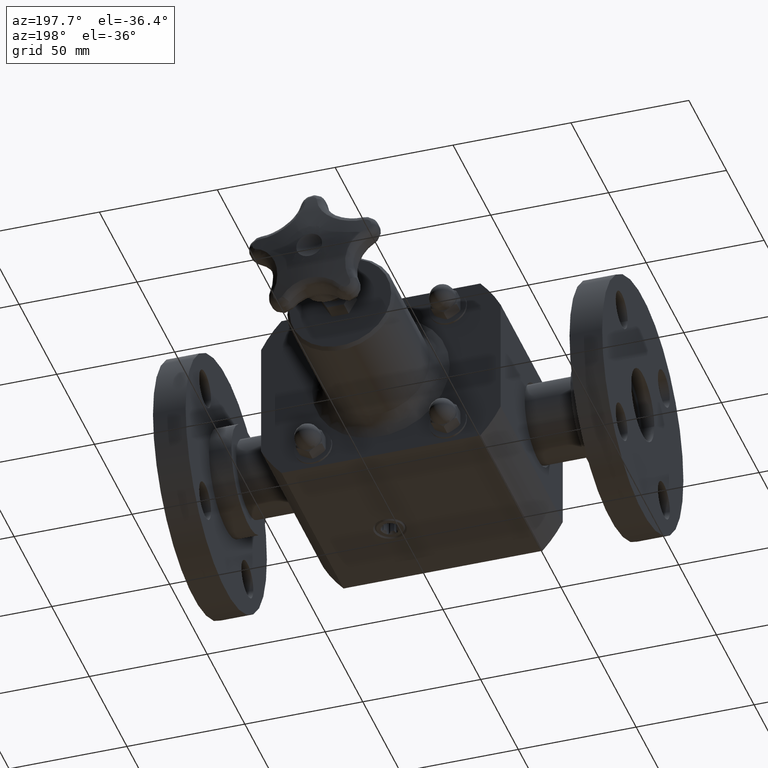
[diagram: clean part render]
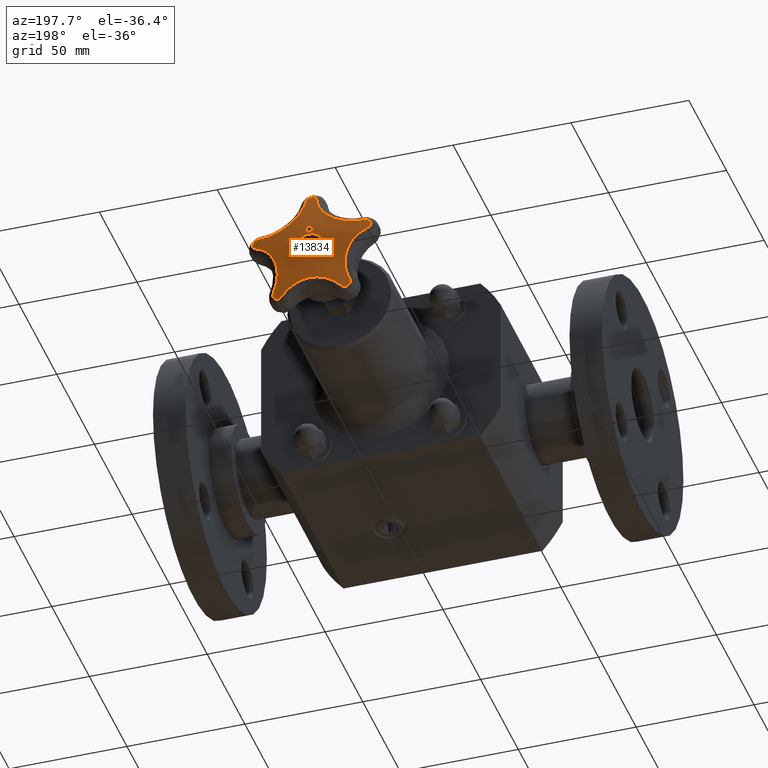
[diagram: same view with one face highlighted and labeled with its STEP entity id]
A machine part, auxiliary view. The second image highlights one B-rep face of the part: STEP entity #13834.
In plain terms, the highlighted spherical surface has radius 101.6 mm.
Its self-contained STEP definition (entity closure, byte-faithful):
#10645=CARTESIAN_POINT('',(0.085862900185211,6.992578033837449,-0.334336098257462));
#10646=VERTEX_POINT('',#10645);
#10653=CARTESIAN_POINT('',(0.080862571524474,6.990070388788940,-0.364135061299996));
#10654=VERTEX_POINT('',#10653);
#10655=CARTESIAN_POINT('',(0.138077283113868,3.007499999999999,-0.023169658459773));
#10656=DIRECTION('',(0.986211736099962,-3.532625E-034,-0.165488403154721));
#10657=DIRECTION('',(0.165488403154721,2.105233E-033,0.986211736099962));
#10658=AXIS2_PLACEMENT_3D('',#10655,#10656,#10657);
#10659=CIRCLE('',#10658,3.997548977913186);
#10660=EDGE_CURVE('',#10654,#10646,#10659,.T.);
#10678=CARTESIAN_POINT('',(0.066931145986276,6.990560100352849,-0.361597094393902));
#10679=VERTEX_POINT('',#10678);
#10680=CARTESIAN_POINT('',(-0.061608234058828,3.007499999999999,-0.338180345563003));
#10681=DIRECTION('',(-0.179225881333302,0.0,-0.983807950496590));
#10682=DIRECTION('',(0.0,-1.0,0.0));
#10683=AXIS2_PLACEMENT_3D('',#10680,#10681,#10682);
#10684=CIRCLE('',#10683,3.985202438944732);
#10685=EDGE_CURVE('',#10679,#10654,#10684,.T.);
#10703=CARTESIAN_POINT('',(0.086359266902231,6.999345606544357,-0.240230577846813));
#10704=VERTEX_POINT('',#10703);
#10705=CARTESIAN_POINT('',(0.121696449326066,3.007499999999999,-0.019480935927100));
#10706=DIRECTION('',(-0.987428598717144,3.374175E-034,0.158065690254078));
#10707=DIRECTION('',(-0.158065690254078,-2.107831E-033,-0.987428598717144));
#10708=AXIS2_PLACEMENT_3D('',#10705,#10706,#10707);
#10709=CIRCLE('',#10708,3.998100857576862);
#10710=EDGE_CURVE('',#10704,#10679,#10709,.T.);
#10728=CARTESIAN_POINT('',(0.178491128782160,6.990560100243761,-0.321516958794137));
#10729=VERTEX_POINT('',#10728);
#10730=CARTESIAN_POINT('',(-0.081379549747351,3.007499999999999,-0.092237461550079));
#10731=DIRECTION('',(0.661592173204071,0.0,0.749863851879202));
#10732=DIRECTION('',(0.0,1.0,0.0));
#10733=AXIS2_PLACEMENT_3D('',#10730,#10731,#10732);
#10734=CIRCLE('',#10733,3.998108255108873);
#10735=EDGE_CURVE('',#10729,#10704,#10734,.T.);
#10771=CARTESIAN_POINT('',(0.169360113250168,6.990070388702392,-0.332340564889026));
#10772=VERTEX_POINT('',#10771);
#10773=CARTESIAN_POINT('',(0.262739148876333,3.007499999999999,-0.221652121134103));
#10774=DIRECTION('',(0.764340282334966,0.0,-0.644813099122609));
#10775=DIRECTION('',(0.0,-1.0,0.0));
#10776=AXIS2_PLACEMENT_3D('',#10773,#10774,#10775);
#10777=CIRCLE('',#10776,3.985202438627741);
#10778=EDGE_CURVE('',#10772,#10729,#10777,.T.);
#10796=CARTESIAN_POINT('',(0.146539084429404,6.992578033778148,-0.312536976105990));
#10797=VERTEX_POINT('',#10796);
#10798=CARTESIAN_POINT('',(-0.091762441742962,3.007499999999999,-0.105744133077216));
#10799=DIRECTION('',(-0.655409775395539,0.0,-0.755273477831686));
#10800=DIRECTION('',(0.0,-1.0,0.0));
#10801=AXIS2_PLACEMENT_3D('',#10798,#10799,#10800);
#10802=CIRCLE('',#10801,3.997548978137118);
#10803=EDGE_CURVE('',#10797,#10772,#10802,.T.);
#10821=CARTESIAN_POINT('',(0.116200988857743,3.007499999999999,-0.323436538421051));
#10822=DIRECTION('',(0.338111065893150,0.0,-0.941106214579735));
#10823=DIRECTION('',(0.0,-1.0,0.0));
#10824=AXIS2_PLACEMENT_3D('',#10821,#10822,#10823);
#10825=CIRCLE('',#10824,3.985208418113498);
#10826=EDGE_CURVE('',#10646,#10797,#10825,.T.);
#10856=CARTESIAN_POINT('',(0.037834369669133,6.998204436490725,0.269901206082853));
#10857=VERTEX_POINT('',#10856);
#10864=CARTESIAN_POINT('',(-0.000813251585510,6.999463335806677,0.253432563411026));
#10865=VERTEX_POINT('',#10864);
#10866=CARTESIAN_POINT('',(-0.000813251585510,6.999463335806677,0.253432563411026));
#10867=CARTESIAN_POINT('',(0.004822604549694,6.999463267161416,0.253451729844247));
#10868=CARTESIAN_POINT('',(0.010434056143418,6.999408968571549,0.254137147028971));
#10869=CARTESIAN_POINT('',(0.019829419967589,6.999191776701513,0.256945437338925));
#10870=CARTESIAN_POINT('',(0.023603879105451,6.999063271092422,0.258616838560289));
#10871=CARTESIAN_POINT('',(0.031162797321007,6.998707503911847,0.263275608997046));
#10872=CARTESIAN_POINT('',(0.034718544485056,6.998475224151669,0.266334166676061));
#10873=CARTESIAN_POINT('',(0.037834369669133,6.998204436490725,0.269901206082853));
#10874=B_SPLINE_CURVE_WITH_KNOTS('',3,(#10866,#10867,#10868,#10869,#10870,#10871,#10872,#10873),.UNSPECIFIED.,.F.,.U.,(4,2,2,4),(0.0,0.042945472093289,0.074729953679080,0.111130521126663),.UNSPECIFIED.);
#10875=EDGE_CURVE('',#10865,#10857,#10874,.T.);
#10908=CARTESIAN_POINT('',(0.051972176469609,6.994648590963243,0.316140801626154));
#10909=VERTEX_POINT('',#10908);
#10916=CARTESIAN_POINT('',(0.037834369669133,6.998204436490725,0.269901206082853));
#10917=CARTESIAN_POINT('',(0.041442739555291,6.997886429832898,0.274097371770597));
#10918=CARTESIAN_POINT('',(0.044216393332118,6.997526143654532,0.278867364485766));
#10919=CARTESIAN_POINT('',(0.051175872144373,6.996247534047897,0.295695352673443));
#10920=CARTESIAN_POINT('',(0.052000310715353,6.995304176149833,0.307867975918427));
#10921=CARTESIAN_POINT('',(0.051972176469609,6.994648590963243,0.316140801626154));
#10922=B_SPLINE_CURVE_WITH_KNOTS('',3,(#10916,#10917,#10918,#10919,#10920,#10921),.UNSPECIFIED.,.F.,.U.,(4,2,4),(0.0,0.042240697270331,0.139117363804144),.UNSPECIFIED.);
#10923=EDGE_CURVE('',#10857,#10909,#10922,.T.);
#10949=CARTESIAN_POINT('',(0.037422621985948,6.990875481075144,0.362380082417699));
#10950=VERTEX_POINT('',#10949);
#10957=CARTESIAN_POINT('',(0.051972176469609,6.994648590963243,0.316140801626154));
#10958=CARTESIAN_POINT('',(0.051955724861658,6.994265235014526,0.320978368143261));
#10959=CARTESIAN_POINT('',(0.051649887753166,6.993873160763517,0.325860197870604));
#10960=CARTESIAN_POINT('',(0.050134657362984,6.993046460787355,0.336059631335726));
#10961=CARTESIAN_POINT('',(0.048942330808374,6.992679768741239,0.340537076610657));
#10962=CARTESIAN_POINT('',(0.045132529339032,6.991814489793273,0.351068251626344));
#10963=CARTESIAN_POINT('',(0.041865078415885,6.991314249290123,0.357098260899483));
#10964=CARTESIAN_POINT('',(0.037422621985948,6.990875481075144,0.362380082417699));
#10965=B_SPLINE_CURVE_WITH_KNOTS('',3,(#10957,#10958,#10959,#10960,#10961,#10962,#10963,#10964),.UNSPECIFIED.,.F.,.U.,(4,2,2,4),(0.0,0.036978033263811,0.078812994269673,0.145814753845857),.UNSPECIFIED.);
#10966=EDGE_CURVE('',#10909,#10950,#10965,.T.);
#10994=CARTESIAN_POINT('',(-0.001238542349022,6.989552846207734,0.378488567887762));
#10995=VERTEX_POINT('',#10994);
#11002=CARTESIAN_POINT('',(0.037422621985948,6.990875481075143,0.362380082417699));
#11003=CARTESIAN_POINT('',(0.034954443929450,6.990644692501274,0.365171856276013));
#11004=CARTESIAN_POINT('',(0.032197988751061,6.990440415363388,0.367645041378231));
#11005=CARTESIAN_POINT('',(0.025433171661516,6.990054380883788,0.372335971569167));
#11006=CARTESIAN_POINT('',(0.021382576080450,6.989892027163672,0.374321631798851));
#11007=CARTESIAN_POINT('',(0.014161922593872,6.989697132621297,0.376716303028090));
#11008=CARTESIAN_POINT('',(0.011126297743766,6.989640822220747,0.377412789087582));
#11009=CARTESIAN_POINT('',(0.004967186895550,6.989568654773591,0.378304358121797));
#11010=CARTESIAN_POINT('',(0.001864839243269,6.989552808314178,0.378499121875412));
#11011=CARTESIAN_POINT('',(-0.001238542349022,6.989552846207735,0.378488567887762));
#11012=B_SPLINE_CURVE_WITH_KNOTS('',3,(#11002,#11003,#11004,#11005,#11006,#11007,#11008,#11009,#11010,#11011),.UNSPECIFIED.,.F.,.U.,(4,2,2,2,4),(0.0,0.028449418287417,0.062797366334246,0.086669104210055,0.110412733579470),.UNSPECIFIED.);
#11013=EDGE_CURVE('',#10950,#10995,#11012,.T.);
#11199=CARTESIAN_POINT('',(-0.039886494311879,6.990875481072099,0.362117169387378));
#11200=VERTEX_POINT('',#11199);
#11207=CARTESIAN_POINT('',(-0.001238542349022,6.989552846207735,0.378488567887762));
#11208=CARTESIAN_POINT('',(-0.006745334190294,6.989552913447912,0.378469840376704));
#11209=CARTESIAN_POINT('',(-0.012222719771290,6.989603190919957,0.377803010782853));
#11210=CARTESIAN_POINT('',(-0.022169110236763,6.989836259202795,0.374873454632416));
#11211=CARTESIAN_POINT('',(-0.025880772573738,6.989983982792515,0.373045650941543));
#11212=CARTESIAN_POINT('',(-0.032976239086434,6.990326456239560,0.368822005397033));
#11213=CARTESIAN_POINT('',(-0.036677483482774,6.990576120274293,0.365763676003978));
#11214=CARTESIAN_POINT('',(-0.039886494311879,6.990875481072099,0.362117169387378));
#11215=B_SPLINE_CURVE_WITH_KNOTS('',3,(#11207,#11208,#11209,#11210,#11211,#11212,#11213,#11214),.UNSPECIFIED.,.F.,.U.,(4,2,2,4),(0.0,0.041961996486355,0.079020325656231,0.132098515306939),.UNSPECIFIED.);
#11216=EDGE_CURVE('',#10995,#11200,#11215,.T.);
#11242=CARTESIAN_POINT('',(-0.054121214575584,6.994648590959068,0.315779998964419));
#11243=VERTEX_POINT('',#11242);
#11250=CARTESIAN_POINT('',(-0.039886494311879,6.990875481072099,0.362117169387379));
#11251=CARTESIAN_POINT('',(-0.043384531614640,6.991215540252459,0.357991135129826));
#11252=CARTESIAN_POINT('',(-0.046110522559887,6.991601304155911,0.353327026506887));
#11253=CARTESIAN_POINT('',(-0.049655140330849,6.992287322165349,0.344989572698873));
#11254=CARTESIAN_POINT('',(-0.051408401706368,6.992680648419752,0.340203251638015));
#11255=CARTESIAN_POINT('',(-0.053714336300564,6.993694761028934,0.327721858865083));
#11256=CARTESIAN_POINT('',(-0.054141415064117,6.994177878462815,0.321719917253611));
#11257=CARTESIAN_POINT('',(-0.054121214575584,6.994648590959069,0.315779998964419));
#11258=B_SPLINE_CURVE_WITH_KNOTS('',3,(#11250,#11251,#11252,#11253,#11254,#11255,#11256,#11257),.UNSPECIFIED.,.F.,.U.,(4,2,2,4),(0.0,0.041300163745689,0.069239721804254,0.093823977580811),.UNSPECIFIED.);
#11259=EDGE_CURVE('',#11200,#11243,#11258,.T.);
#11285=CARTESIAN_POINT('',(-0.039571990800137,6.998205379604828,0.269637962344318));
#11286=VERTEX_POINT('',#11285);
#11293=CARTESIAN_POINT('',(-0.054121214575584,6.994648590959069,0.315779998964419));
#11294=CARTESIAN_POINT('',(-0.054104973183962,6.995027048439477,0.311004246190809));
#11295=CARTESIAN_POINT('',(-0.053791585087129,6.995402200783875,0.306211457940532));
#11296=CARTESIAN_POINT('',(-0.052375519715094,6.996143410979318,0.296655576028873));
#11297=CARTESIAN_POINT('',(-0.051258684496628,6.996507467278865,0.291916990166383));
#11298=CARTESIAN_POINT('',(-0.047377403862622,6.997352193214817,0.280860112488070));
#11299=CARTESIAN_POINT('',(-0.044132654634130,6.997811607413357,0.274796561836272));
#11300=CARTESIAN_POINT('',(-0.039571990800137,6.998205379604828,0.269637962344318));
#11301=B_SPLINE_CURVE_WITH_KNOTS('',3,(#11293,#11294,#11295,#11296,#11297,#11298,#11299,#11300),.UNSPECIFIED.,.F.,.U.,(4,2,2,4),(0.0,0.036505533163791,0.073822024429602,0.126837533468264),.UNSPECIFIED.);
#11302=EDGE_CURVE('',#11243,#11286,#11301,.T.);
#11329=CARTESIAN_POINT('',(-0.039571990800137,6.998205379604828,0.269637962344318));
#11330=CARTESIAN_POINT('',(-0.036994618978134,6.998426649193219,0.266741374653485));
#11331=CARTESIAN_POINT('',(-0.034125944551199,6.998624226597590,0.264155087526020));
#11332=CARTESIAN_POINT('',(-0.028127958870894,6.998941902899273,0.260022999604724));
#11333=CARTESIAN_POINT('',(-0.024119800176987,6.999119835051819,0.257727462092390));
#11334=CARTESIAN_POINT('',(-0.015614631027444,6.999330482346444,0.255058899401250));
#11335=CARTESIAN_POINT('',(-0.012615830697533,6.999382732516449,0.254406267976288));
#11336=CARTESIAN_POINT('',(-0.006666959610788,6.999448427235686,0.253597873925737));
#11337=CARTESIAN_POINT('',(-0.003741704705223,6.999463371475511,0.253422604320576));
#11338=CARTESIAN_POINT('',(-0.000813251586145,6.999463335806677,0.253432563411023));
#11339=B_SPLINE_CURVE_WITH_KNOTS('',3,(#11329,#11330,#11331,#11332,#11333,#11334,#11335,#11336,#11337,#11338),.UNSPECIFIED.,.F.,.U.,(4,2,2,2,4),(0.0,0.029592715149351,0.055552496815722,0.069221283901438,0.082236559754027),.UNSPECIFIED.);
#11340=EDGE_CURVE('',#11286,#10865,#11339,.T.);
#11614=CARTESIAN_POINT('',(-0.247118300170064,6.994930202010447,-0.198325313099391));
#11615=VERTEX_POINT('',#11614);
#11622=CARTESIAN_POINT('',(-0.207827658530652,6.995059962457521,-0.237008882018031));
#11623=VERTEX_POINT('',#11622);
#11624=CARTESIAN_POINT('',(-0.220785948703934,3.007499999999999,-0.224250808083116));
#11625=DIRECTION('',(0.701580297701931,0.0,0.712590405405847));
#11626=DIRECTION('',(0.0,1.0,0.0));
#11627=AXIS2_PLACEMENT_3D('',#11624,#11625,#11626);
#11628=CIRCLE('',#11627,3.987601426914302);
#11629=EDGE_CURVE('',#11623,#11615,#11628,.T.);
#11647=CARTESIAN_POINT('',(-0.176580613442933,6.998324840990898,-0.205271467783727));
#11648=VERTEX_POINT('',#11647);
#11649=CARTESIAN_POINT('',(0.012958290173282,3.007499999999999,-0.012758073934915));
#11650=DIRECTION('',(-0.712590405405847,0.0,0.701580297701931));
#11651=DIRECTION('',(0.0,1.0,0.0));
#11652=AXIS2_PLACEMENT_3D('',#11649,#11650,#11651);
#11653=CIRCLE('',#11652,3.999958664069575);
#11654=EDGE_CURVE('',#11648,#11623,#11653,.T.);
#11672=CARTESIAN_POINT('',(-0.218712377317293,6.998156275729467,-0.163790674304833));
#11673=VERTEX_POINT('',#11672);
#11674=CARTESIAN_POINT('',(-0.189538903616215,3.007499999999999,-0.192513393848811));
#11675=DIRECTION('',(-0.701580297701931,0.0,-0.712590405405848));
#11676=DIRECTION('',(0.0,-1.0,0.0));
#11677=AXIS2_PLACEMENT_3D('',#11674,#11675,#11676);
#11678=CIRCLE('',#11677,3.990866271526118);
#11679=EDGE_CURVE('',#11673,#11648,#11678,.T.);
#11697=CARTESIAN_POINT('',(-0.208751528883217,6.999092069880928,-0.153673507321845));
#11698=VERTEX_POINT('',#11697);
#11699=CARTESIAN_POINT('',(-0.029173473701078,3.007499999999999,0.028722719543979));
#11700=DIRECTION('',(-0.712590405405848,0.0,0.701580297701931));
#11701=DIRECTION('',(0.0,1.0,0.0));
#11702=AXIS2_PLACEMENT_3D('',#11699,#11700,#11701);
#11703=CIRCLE('',#11702,3.999790483739644);
#11704=EDGE_CURVE('',#11698,#11673,#11703,.T.);
#11722=CARTESIAN_POINT('',(-0.155255276069062,6.999156082813489,-0.206343199041756));
#11723=VERTEX_POINT('',#11722);
#11724=CARTESIAN_POINT('',(-0.179578055182138,3.007499999999999,-0.182396226865823));
#11725=DIRECTION('',(0.701580297701931,0.0,0.712590405405847));
#11726=DIRECTION('',(0.0,1.0,0.0));
#11727=AXIS2_PLACEMENT_3D('',#11724,#11725,#11726);
#11728=CIRCLE('',#11727,3.991802016448476);
#11729=EDGE_CURVE('',#11723,#11698,#11728,.T.);
#11747=CARTESIAN_POINT('',(-0.239444912833790,6.989646073155507,-0.291854048747284));
#11748=VERTEX_POINT('',#11747);
#11749=CARTESIAN_POINT('',(0.024322779113077,3.007499999999999,-0.023946972175932));
#11750=DIRECTION('',(0.712590405405848,0.0,-0.701580297701931));
#11751=DIRECTION('',(0.0,-1.0,0.0));
#11752=AXIS2_PLACEMENT_3D('',#11749,#11750,#11751);
#11753=CIRCLE('',#11752,3.999854365466301);
#11754=EDGE_CURVE('',#11748,#11723,#11753,.T.);
#11772=CARTESIAN_POINT('',(-0.292941165647945,6.989581907347238,-0.239184357027372));
#11773=VERTEX_POINT('',#11772);
#11774=CARTESIAN_POINT('',(-0.263767691946867,3.007499999999999,-0.267907076571351));
#11775=DIRECTION('',(-0.701580297701931,0.0,-0.712590405405847));
#11776=DIRECTION('',(0.0,-1.0,0.0));
#11777=AXIS2_PLACEMENT_3D('',#11774,#11775,#11776);
#11778=CIRCLE('',#11777,3.982292355290859);
#11779=EDGE_CURVE('',#11773,#11748,#11778,.T.);
#11797=CARTESIAN_POINT('',(-0.282980317213869,6.990896837187414,-0.229067190044385));
#11798=VERTEX_POINT('',#11797);
#11799=CARTESIAN_POINT('',(-0.029173473701078,3.007499999999999,0.028722719543979));
#11800=DIRECTION('',(-0.712590405405848,0.0,0.701580297701931));
#11801=DIRECTION('',(0.0,1.0,0.0));
#11802=AXIS2_PLACEMENT_3D('',#11799,#11800,#11801);
#11803=CIRCLE('',#11802,3.999790483739644);
#11804=EDGE_CURVE('',#11798,#11773,#11803,.T.);
#11822=CARTESIAN_POINT('',(-0.240848553339509,6.991065709633236,-0.270547983523278));
#11823=VERTEX_POINT('',#11822);
#11824=CARTESIAN_POINT('',(-0.253806843512790,3.007499999999999,-0.257789909588363));
#11825=DIRECTION('',(0.701580297701931,0.0,0.712590405405847));
#11826=DIRECTION('',(0.0,1.0,0.0));
#11827=AXIS2_PLACEMENT_3D('',#11824,#11825,#11826);
#11828=CIRCLE('',#11827,3.983607215665281);
#11829=EDGE_CURVE('',#11823,#11798,#11828,.T.);
#11847=CARTESIAN_POINT('',(-0.217788506964729,6.993914037971873,-0.247126049001019));
#11848=VERTEX_POINT('',#11847);
#11849=CARTESIAN_POINT('',(0.012958290173282,3.007499999999999,-0.012758073934914));
#11850=DIRECTION('',(-0.712590405405848,0.0,0.701580297701930));
#11851=DIRECTION('',(0.0,1.0,0.0));
#11852=AXIS2_PLACEMENT_3D('',#11849,#11850,#11851);
#11853=CIRCLE('',#11852,3.999958664069575);
#11854=EDGE_CURVE('',#11848,#11823,#11853,.T.);
#11872=CARTESIAN_POINT('',(-0.257079148604141,6.993784240222976,-0.208442480082379));
#11873=VERTEX_POINT('',#11872);
#11874=CARTESIAN_POINT('',(-0.230746797138010,3.007499999999999,-0.234367975066104));
#11875=DIRECTION('',(-0.701580297701931,0.0,-0.712590405405848));
#11876=DIRECTION('',(0.0,-1.0,0.0));
#11877=AXIS2_PLACEMENT_3D('',#11874,#11875,#11876);
#11878=CIRCLE('',#11877,3.986455514347798);
#11879=EDGE_CURVE('',#11873,#11848,#11878,.T.);
#11897=CARTESIAN_POINT('',(-0.026332351466130,3.007499999999999,0.025925494983725));
#11898=DIRECTION('',(-0.712590405405848,0.0,0.701580297701931));
#11899=DIRECTION('',(0.0,1.0,0.0));
#11900=AXIS2_PLACEMENT_3D('',#11897,#11898,#11899);
#11901=CIRCLE('',#11900,3.999829305854953);
#11902=EDGE_CURVE('',#11615,#11873,#11901,.T.);
#11924=CARTESIAN_POINT('',(0.104679989358765,6.989501420719622,0.364289425065761));
#11925=VERTEX_POINT('',#11924);
#11932=CARTESIAN_POINT('',(0.193260657033255,6.989499064924951,0.326088585172621));
#11933=VERTEX_POINT('',#11932);
#11934=CARTESIAN_POINT('',(0.148881029224559,3.007499999999999,0.345227513574776));
#11935=DIRECTION('',(0.395999965100261,0.0,0.918250525532435));
#11936=DIRECTION('',(0.0,1.0,0.0));
#11937=AXIS2_PLACEMENT_3D('',#11934,#11935,#11936);
#11938=CIRCLE('',#11937,3.982292355290859);
#11939=EDGE_CURVE('',#11933,#11925,#11938,.T.);
#11964=CARTESIAN_POINT('',(0.099057688326105,6.990816377129185,0.351252350992701));
#11965=VERTEX_POINT('',#11964);
#11972=CARTESIAN_POINT('',(-0.044201039865794,3.007499999999999,0.019061911490986));
#11973=DIRECTION('',(-0.918250525532435,8.453278E-034,0.395999965100260));
#11974=DIRECTION('',(-0.395999965100260,-1.960158E-033,-0.918250525532435));
#11975=AXIS2_PLACEMENT_3D('',#11972,#11973,#11974);
#11976=CIRCLE('',#11975,3.999710353463748);
#11977=EDGE_CURVE('',#11925,#11965,#11976,.T.);
#11997=CARTESIAN_POINT('',(0.136025829875741,6.991099428197434,0.335309661763105));
#11998=VERTEX_POINT('',#11997);
#12005=CARTESIAN_POINT('',(0.143258728191900,3.007499999999999,0.332190439501716));
#12006=DIRECTION('',(-0.395999965100261,0.0,-0.918250525532434));
#12007=DIRECTION('',(0.0,-1.0,0.0));
#12008=AXIS2_PLACEMENT_3D('',#12005,#12006,#12007);
#12009=CIRCLE('',#12008,3.983607215665281);
#12010=EDGE_CURVE('',#11965,#11998,#12009,.T.);
#12030=CARTESIAN_POINT('',(0.094128134509071,6.999294244967611,0.238156671410437));
#12031=VERTEX_POINT('',#12030);
#12038=CARTESIAN_POINT('',(-0.007232898316158,3.007499999999999,0.003119222261389));
#12039=DIRECTION('',(-0.918250525532435,8.453278E-034,0.395999965100261));
#12040=DIRECTION('',(-0.395999965100261,-1.960158E-033,-0.918250525532435));
#12041=AXIS2_PLACEMENT_3D('',#12038,#12039,#12040);
#12042=CIRCLE('',#12041,3.999992244446786);
#12043=EDGE_CURVE('',#11998,#12031,#12042,.T.);
#12063=CARTESIAN_POINT('',(0.108772519084290,6.999293856457105,0.231841209976491));
#12064=VERTEX_POINT('',#12063);
#12071=CARTESIAN_POINT('',(0.101361032825230,3.007499999999999,0.235037449149049));
#12072=DIRECTION('',(-0.395999965100260,0.0,-0.918250525532435));
#12073=DIRECTION('',(0.0,-1.0,0.0));
#12074=AXIS2_PLACEMENT_3D('',#12071,#12072,#12073);
#12075=CIRCLE('',#12074,3.991802016448476);
#12076=EDGE_CURVE('',#12031,#12064,#12075,.T.);
#12096=CARTESIAN_POINT('',(0.150670214450959,6.991099038887708,0.328994200329158));
#12097=VERTEX_POINT('',#12096);
#12104=CARTESIAN_POINT('',(0.007411486259060,3.007499999999999,-0.003196239172557));
#12105=DIRECTION('',(0.918250525532434,-8.453278E-034,-0.395999965100261));
#12106=DIRECTION('',(0.395999965100261,1.960158E-033,0.918250525532434));
#12107=AXIS2_PLACEMENT_3D('',#12104,#12105,#12106);
#12108=CIRCLE('',#12107,3.999991856732535);
#12109=EDGE_CURVE('',#12064,#12097,#12108,.T.);
#12129=CARTESIAN_POINT('',(0.187638356000596,6.990814022112200,0.313051511099561));
#12130=VERTEX_POINT('',#12129);
#12137=CARTESIAN_POINT('',(0.143258728191900,3.007499999999999,0.332190439501716));
#12138=DIRECTION('',(-0.395999965100261,0.0,-0.918250525532435));
#12139=DIRECTION('',(0.0,-1.0,0.0));
#12140=AXIS2_PLACEMENT_3D('',#12137,#12138,#12139);
#12141=CIRCLE('',#12140,3.983607215665281);
#12142=EDGE_CURVE('',#12097,#12130,#12141,.T.);
#12161=CARTESIAN_POINT('',(0.044379627808697,3.007499999999999,-0.019138928402154));
#12162=DIRECTION('',(0.918250525532435,-8.453278E-034,-0.395999965100259));
#12163=DIRECTION('',(0.395999965100259,1.960158E-033,0.918250525532435));
#12164=AXIS2_PLACEMENT_3D('',#12161,#12162,#12163);
#12165=CIRCLE('',#12164,3.999708008099489);
#12166=EDGE_CURVE('',#12130,#11933,#12165,.T.);
#12265=CARTESIAN_POINT('',(-0.132776476717595,6.999152316888535,-0.221545002897484));
#12266=VERTEX_POINT('',#12265);
#12273=CARTESIAN_POINT('',(-0.141106922486269,6.991658741024817,-0.326447488490869));
#12274=VERTEX_POINT('',#12273);
#12275=CARTESIAN_POINT('',(-0.114461481346885,3.007499999999999,0.009089538322841));
#12276=DIRECTION('',(0.996861755361221,-1.689847E-034,-0.079162116559279));
#12277=DIRECTION('',(0.079162116559279,2.127967E-033,0.996861755361221));
#12278=AXIS2_PLACEMENT_3D('',#12275,#12276,#12277);
#12279=CIRCLE('',#12278,3.998351654067081);
#12280=EDGE_CURVE('',#12274,#12266,#12279,.T.);
#12298=CARTESIAN_POINT('',(-0.071391562909479,6.999171847508762,-0.247909472492113));
#12299=VERTEX_POINT('',#12298);
#12300=CARTESIAN_POINT('',(0.083150511259561,3.007499999999999,-0.073809704991097));
#12301=DIRECTION('',(-0.747864056465855,0.0,0.663851905959784));
#12302=DIRECTION('',(0.0,1.0,0.0));
#12303=AXIS2_PLACEMENT_3D('',#12300,#12301,#12302);
#12304=CIRCLE('',#12303,3.998454466406539);
#12305=EDGE_CURVE('',#12299,#12274,#12304,.T.);
#12323=CARTESIAN_POINT('',(-0.055754940032593,6.998998131883168,-0.254625312636306));
#12324=VERTEX_POINT('',#12323);
#12325=CARTESIAN_POINT('',(-0.101011795140333,3.007499999999999,-0.235187752062932));
#12326=DIRECTION('',(0.394635554071923,0.0,0.918837732933485));
#12327=DIRECTION('',(0.0,1.0,0.0));
#12328=AXIS2_PLACEMENT_3D('',#12325,#12326,#12327);
#12329=CIRCLE('',#12328,3.991802016448476);
#12330=EDGE_CURVE('',#12324,#12299,#12329,.T.);
#12348=CARTESIAN_POINT('',(-0.140907158403199,6.989784076964297,-0.348652696916783));
#12349=VERTEX_POINT('',#12348);
#12350=CARTESIAN_POINT('',(0.096057099062330,3.007499999999999,-0.086990350077203));
#12351=DIRECTION('',(0.741222642945153,0.0,-0.671259259590065));
#12352=DIRECTION('',(0.0,-1.0,0.0));
#12353=AXIS2_PLACEMENT_3D('',#12350,#12351,#12352);
#12354=CIRCLE('',#12353,3.997900162924680);
#12355=EDGE_CURVE('',#12349,#12324,#12354,.T.);
#12373=CARTESIAN_POINT('',(-0.156722485541535,6.989781975401068,-0.341860104313799));
#12374=VERTEX_POINT('',#12373);
#12375=CARTESIAN_POINT('',(-0.148368062214239,3.007499999999999,-0.345448281377657));
#12376=DIRECTION('',(-0.394635554071924,0.0,-0.918837732933484));
#12377=DIRECTION('',(0.0,-1.0,0.0));
#12378=AXIS2_PLACEMENT_3D('',#12375,#12376,#12377);
#12379=CIRCLE('',#12378,3.982292355290859);
#12380=EDGE_CURVE('',#12374,#12349,#12379,.T.);
#12398=CARTESIAN_POINT('',(-0.147698282548680,6.998978628851238,-0.215136172588454));
#12399=VERTEX_POINT('',#12398);
#12400=CARTESIAN_POINT('',(-0.131710197155649,3.007499999999999,0.009379282501569));
#12401=DIRECTION('',(-0.997474063033574,1.516288E-034,0.071031637847470));
#12402=DIRECTION('',(-0.071031637847470,-2.129274E-033,-0.997474063033574));
#12403=AXIS2_PLACEMENT_3D('',#12400,#12401,#12402);
#12404=CIRCLE('',#12403,3.997819962557716);
#12405=EDGE_CURVE('',#12399,#12374,#12404,.T.);
#12423=CARTESIAN_POINT('',(-0.101011795140333,3.007499999999999,-0.235187752062933));
#12424=DIRECTION('',(0.394635554071923,0.0,0.918837732933485));
#12425=DIRECTION('',(0.0,1.0,0.0));
#12426=AXIS2_PLACEMENT_3D('',#12423,#12424,#12425);
#12427=CIRCLE('',#12426,3.991802016448476);
#12428=EDGE_CURVE('',#12266,#12399,#12427,.T.);
#12450=CARTESIAN_POINT('',(-0.069865805707576,6.999162659387477,0.248491414025747));
#12451=VERTEX_POINT('',#12450);
#12458=CARTESIAN_POINT('',(-0.084532147717997,6.999264063873194,0.242227113207306));
#12459=VERTEX_POINT('',#12458);
#12460=CARTESIAN_POINT('',(-0.100539922146019,3.007499999999999,0.235389858602194));
#12461=DIRECTION('',(0.392792028171763,0.0,-0.919627328108899));
#12462=DIRECTION('',(0.0,-1.0,0.0));
#12463=AXIS2_PLACEMENT_3D('',#12460,#12461,#12462);
#12464=CIRCLE('',#12463,3.991802016448476);
#12465=EDGE_CURVE('',#12459,#12451,#12464,.T.);
#12490=CARTESIAN_POINT('',(-0.117000849670728,6.989652665435393,0.358846694762693));
#12491=VERTEX_POINT('',#12490);
#12498=CARTESIAN_POINT('',(0.030674116438442,3.007499999999999,0.013101555423553));
#12499=DIRECTION('',(0.919627328108900,8.384799E-034,0.392792028171762));
#12500=DIRECTION('',(-0.392792028171762,1.963097E-033,0.919627328108900));
#12501=AXIS2_PLACEMENT_3D('',#12498,#12499,#12500);
#12502=CIRCLE('',#12501,3.999860928560668);
#12503=EDGE_CURVE('',#12451,#12491,#12502,.T.);
#12523=CARTESIAN_POINT('',(-0.144723813227011,6.989791062296546,0.347005638337590));
#12524=VERTEX_POINT('',#12523);
#12531=CARTESIAN_POINT('',(-0.147674966109170,3.007499999999999,0.345745139339140));
#12532=DIRECTION('',(-0.392792028171761,0.0,0.919627328108900));
#12533=DIRECTION('',(0.0,1.0,0.0));
#12534=AXIS2_PLACEMENT_3D('',#12531,#12532,#12533);
#12535=CIRCLE('',#12534,3.982292355290859);
#12536=EDGE_CURVE('',#12491,#12524,#12535,.T.);
#12562=CARTESIAN_POINT('',(-0.170668187046193,6.990392332671243,0.327781995050035));
#12563=VERTEX_POINT('',#12562);
#12570=CARTESIAN_POINT('',(-0.144723813227011,6.989791062296545,0.347005638337590));
#12571=CARTESIAN_POINT('',(-0.150088261328737,6.989795762969324,0.344714370575645));
#12572=CARTESIAN_POINT('',(-0.155816045050091,6.989823287565297,0.341843284165149));
#12573=CARTESIAN_POINT('',(-0.163386369744121,6.989985173854674,0.336346581494137));
#12574=CARTESIAN_POINT('',(-0.167427829443181,6.990105667536206,0.332952450875757));
#12575=CARTESIAN_POINT('',(-0.170668187046193,6.990392332671243,0.327781995050035));
#12576=B_SPLINE_CURVE_WITH_KNOTS('',3,(#12570,#12571,#12572,#12573,#12574,#12575),.UNSPECIFIED.,.F.,.U.,(4,2,4),(0.0,0.044449644500484,0.071079555324561),.UNSPECIFIED.);
#12577=EDGE_CURVE('',#12524,#12563,#12576,.T.);
#12749=CARTESIAN_POINT('',(-0.172546135424800,6.992815390487376,0.295785512651346));
#12750=VERTEX_POINT('',#12749);
#12757=CARTESIAN_POINT('',(-0.170668187046193,6.990392332671243,0.327781995050035));
#12758=CARTESIAN_POINT('',(-0.172986087574699,6.990591167831976,0.324159065981219));
#12759=CARTESIAN_POINT('',(-0.174567491806914,6.990838750576290,0.320245416315975));
#12760=CARTESIAN_POINT('',(-0.176129629330600,6.991442814318248,0.311764074180629));
#12761=CARTESIAN_POINT('',(-0.175887094211242,6.991718772794617,0.308335133779387));
#12762=CARTESIAN_POINT('',(-0.175001277294206,6.992211349698701,0.302427671544136));
#12763=CARTESIAN_POINT('',(-0.173928522803410,6.992515328212925,0.299022037632058));
#12764=CARTESIAN_POINT('',(-0.172546135424800,6.992815390487375,0.295785512651346));
#12765=B_SPLINE_CURVE_WITH_KNOTS('',3,(#12757,#12758,#12759,#12760,#12761,#12762,#12763,#12764),.UNSPECIFIED.,.F.,.U.,(4,2,2,4),(0.0,0.032808337471925,0.065876100718766,0.113361042324126),.UNSPECIFIED.);
#12766=EDGE_CURVE('',#12563,#12750,#12765,.T.);
#12794=CARTESIAN_POINT('',(-0.152421846635907,6.995095568897899,0.275407261294861));
#12795=VERTEX_POINT('',#12794);
#12802=CARTESIAN_POINT('',(-0.172546135424800,6.992815390487376,0.295785512651346));
#12803=CARTESIAN_POINT('',(-0.171321928932304,6.993081117873359,0.292919329875215));
#12804=CARTESIAN_POINT('',(-0.169804261392693,6.993343863950836,0.290215418914447));
#12805=CARTESIAN_POINT('',(-0.165910493783782,6.993891779064992,0.284897251377497));
#12806=CARTESIAN_POINT('',(-0.163657217073226,6.994148699667298,0.282590003201546));
#12807=CARTESIAN_POINT('',(-0.158684575838190,6.994639217410808,0.278482510744070));
#12808=CARTESIAN_POINT('',(-0.155702157987997,6.994881831002915,0.276686491070645));
#12809=CARTESIAN_POINT('',(-0.152421846635907,6.995095568897899,0.275407261294861));
#12810=B_SPLINE_CURVE_WITH_KNOTS('',3,(#12802,#12803,#12804,#12805,#12806,#12807,#12808,#12809),.UNSPECIFIED.,.F.,.U.,(4,2,2,4),(0.0,0.023835253161564,0.050398261842090,0.082258015573386),.UNSPECIFIED.);
#12811=EDGE_CURVE('',#12750,#12795,#12810,.T.);
#12839=CARTESIAN_POINT('',(-0.114533366717580,6.996179920008204,0.278055037055050));
#12840=VERTEX_POINT('',#12839);
#12847=CARTESIAN_POINT('',(-0.152421846635907,6.995095568897899,0.275407261294861));
#12848=CARTESIAN_POINT('',(-0.149545358874605,6.995283458798840,0.274278789378133));
#12849=CARTESIAN_POINT('',(-0.146578636591112,6.995448267506801,0.273482909697010));
#12850=CARTESIAN_POINT('',(-0.136733843929597,6.995902980470306,0.272015981091797));
#12851=CARTESIAN_POINT('',(-0.131190118846057,6.996021826509042,0.272931617342636));
#12852=CARTESIAN_POINT('',(-0.123610109338990,6.996155761130768,0.274533252414456));
#12853=CARTESIAN_POINT('',(-0.118915137061145,6.996184566599570,0.276183491476070));
#12854=CARTESIAN_POINT('',(-0.114533366717580,6.996179920008204,0.278055037055050));
#12855=B_SPLINE_CURVE_WITH_KNOTS('',3,(#12847,#12848,#12849,#12850,#12851,#12852,#12853,#12854),.UNSPECIFIED.,.F.,.U.,(4,2,2,4),(0.0,0.023588710723971,0.075924731072629,0.159708716541644),.UNSPECIFIED.);
#12856=EDGE_CURVE('',#12795,#12840,#12855,.T.);
#12876=CARTESIAN_POINT('',(-0.102102747574601,6.996143834417175,0.283364413968242));
#12877=VERTEX_POINT('',#12876);
#12884=CARTESIAN_POINT('',(-0.118110522002623,3.007499999999999,0.276527159363130));
#12885=DIRECTION('',(0.392792028171763,0.0,-0.919627328108899));
#12886=DIRECTION('',(0.0,-1.0,0.0));
#12887=AXIS2_PLACEMENT_3D('',#12884,#12885,#12886);
#12888=CIRCLE('',#12887,3.988681816681650);
#12889=EDGE_CURVE('',#12840,#12877,#12888,.T.);
#12908=CARTESIAN_POINT('',(0.016007774428022,3.007499999999999,0.006837254605112));
#12909=DIRECTION('',(-0.919627328108900,-8.384799E-034,-0.392792028171761));
#12910=DIRECTION('',(0.392792028171761,-1.963097E-033,-0.919627328108900));
#12911=AXIS2_PLACEMENT_3D('',#12908,#12909,#12910);
#12912=CIRCLE('',#12911,3.999962125209104);
#12913=EDGE_CURVE('',#12877,#12459,#12912,.T.);
#13144=CARTESIAN_POINT('',(-0.025446717491279,6.991118720077396,-0.360741399922220));
#13145=VERTEX_POINT('',#13144);
#13152=CARTESIAN_POINT('',(-0.015977407253327,6.999295876022473,-0.255559008112468));
#13153=VERTEX_POINT('',#13152);
#13154=CARTESIAN_POINT('',(0.006973418085277,3.007499999999999,-0.000627799559719));
#13155=DIRECTION('',(-0.995971991168664,1.914046E-034,0.089664891722048));
#13156=DIRECTION('',(-0.089664891722048,-2.126068E-033,-0.995971991168664));
#13157=AXIS2_PLACEMENT_3D('',#13154,#13155,#13156);
#13158=CIRCLE('',#13157,3.999993872158797);
#13159=EDGE_CURVE('',#13153,#13145,#13158,.T.);
#13177=CARTESIAN_POINT('',(-0.003483366237251,6.999254161384001,-0.256683815682170));
#13178=VERTEX_POINT('',#13177);
#13179=CARTESIAN_POINT('',(-0.022950825338603,3.007499999999999,-0.254931208552749));
#13180=DIRECTION('',(0.089664891722049,0.0,0.995971991168664));
#13181=DIRECTION('',(0.0,1.0,0.0));
#13182=AXIS2_PLACEMENT_3D('',#13179,#13180,#13181);
#13183=CIRCLE('',#13182,3.991802016448476);
#13184=EDGE_CURVE('',#13178,#13153,#13183,.T.);
#13202=CARTESIAN_POINT('',(-0.014077484044905,6.989918389468889,-0.374360248507997));
#13203=VERTEX_POINT('',#13202);
#13204=CARTESIAN_POINT('',(0.019467459101352,3.007499999999999,-0.001752607129421));
#13205=DIRECTION('',(0.995971991168664,-1.914046E-034,-0.089664891722048));
#13206=DIRECTION('',(0.089664891722048,2.126068E-033,0.995971991168664));
#13207=AXIS2_PLACEMENT_3D('',#13204,#13205,#13206);
#13208=CIRCLE('',#13207,3.999952243015458);
#13209=EDGE_CURVE('',#13203,#13178,#13208,.T.);
#13227=CARTESIAN_POINT('',(-0.053012402560117,6.989918389467350,-0.370855034221020));
#13228=VERTEX_POINT('',#13227);
#13229=CARTESIAN_POINT('',(-0.033544943146257,3.007499999999999,-0.372607641378576));
#13230=DIRECTION('',(-0.089664891722049,0.0,-0.995971991168664));
#13231=DIRECTION('',(0.0,-1.0,0.0));
#13232=AXIS2_PLACEMENT_3D('',#13229,#13230,#13231);
#13233=CIRCLE('',#13232,3.982466356716100);
#13234=EDGE_CURVE('',#13228,#13203,#13233,.T.);
#13252=CARTESIAN_POINT('',(-0.051887594990416,6.991076919809039,-0.358360993204945));
#13253=VERTEX_POINT('',#13252);
#13254=CARTESIAN_POINT('',(-0.019467459413859,3.007499999999999,0.001752607157556));
#13255=DIRECTION('',(-0.995971991168664,1.914046E-034,0.089664891722049));
#13256=DIRECTION('',(-0.089664891722049,-2.126068E-033,-0.995971991168664));
#13257=AXIS2_PLACEMENT_3D('',#13254,#13255,#13256);
#13258=CIRCLE('',#13257,3.999952243013925);
#13259=EDGE_CURVE('',#13253,#13228,#13258,.T.);
#13277=CARTESIAN_POINT('',(-0.032420135576556,3.007499999999999,-0.360113600362500));
#13278=DIRECTION('',(0.089664891722049,0.0,0.995971991168664));
#13279=DIRECTION('',(0.0,1.0,0.0));
#13280=AXIS2_PLACEMENT_3D('',#13277,#13278,#13279);
#13281=CIRCLE('',#13280,3.983624873107803);
#13282=EDGE_CURVE('',#13145,#13253,#13281,.T.);
#13304=CARTESIAN_POINT('',(0.158721080860086,6.998978628851238,-0.207137572435436));
#13305=VERTEX_POINT('',#13304);
#13312=CARTESIAN_POINT('',(0.169441733074489,6.999152316888535,-0.194939170438110));
#13313=VERTEX_POINT('',#13312);
#13314=CARTESIAN_POINT('',(0.192263240588120,3.007499999999999,-0.168971914223764));
#13315=DIRECTION('',(-0.751139115701745,0.0,0.660143945562481));
#13316=DIRECTION('',(0.0,1.0,0.0));
#13317=AXIS2_PLACEMENT_3D('',#13314,#13315,#13316);
#13318=CIRCLE('',#13317,3.991802016448476);
#13319=EDGE_CURVE('',#13313,#13305,#13318,.T.);
#13344=CARTESIAN_POINT('',(0.276397654900080,6.989781975401068,-0.255018832170283));
#13345=VERTEX_POINT('',#13344);
#13352=CARTESIAN_POINT('',(-0.049765265912092,3.007499999999999,-0.122306848883139));
#13353=DIRECTION('',(-0.376884729195410,0.0,-0.926260169120589));
#13354=DIRECTION('',(0.0,-1.0,0.0));
#13355=AXIS2_PLACEMENT_3D('',#13352,#13353,#13354);
#13356=CIRCLE('',#13355,3.997819962557716);
#13357=EDGE_CURVE('',#13305,#13345,#13356,.T.);
#13377=CARTESIAN_POINT('',(0.287760262336902,6.989784076964297,-0.242089986939584));
#13378=VERTEX_POINT('',#13377);
#13385=CARTESIAN_POINT('',(0.282399935586327,3.007499999999999,-0.248189188670305));
#13386=DIRECTION('',(0.751139115701747,0.0,-0.660143945562480));
#13387=DIRECTION('',(0.0,-1.0,0.0));
#13388=AXIS2_PLACEMENT_3D('',#13385,#13386,#13387);
#13389=CIRCLE('',#13388,3.982292355290859);
#13390=EDGE_CURVE('',#13345,#13378,#13389,.T.);
#13410=CARTESIAN_POINT('',(0.224778273247032,6.998998131883168,-0.131974963721373));
#13411=VERTEX_POINT('',#13410);
#13418=CARTESIAN_POINT('',(0.112492012560630,3.007499999999999,0.064341544874863));
#13419=DIRECTION('',(0.868042317271149,1.059841E-033,0.496490216848765));
#13420=DIRECTION('',(-0.496490216848765,1.852981E-033,0.868042317271149));
#13421=AXIS2_PLACEMENT_3D('',#13418,#13419,#13420);
#13422=CIRCLE('',#13421,3.997900162924679);
#13423=EDGE_CURVE('',#13378,#13411,#13422,.T.);
#13443=CARTESIAN_POINT('',(0.213544056854694,6.999171847508762,-0.144757720305397));
#13444=VERTEX_POINT('',#13443);
#13451=CARTESIAN_POINT('',(0.192263240588120,3.007499999999999,-0.168971914223764));
#13452=DIRECTION('',(-0.751139115701746,0.0,0.660143945562480));
#13453=DIRECTION('',(0.0,1.0,0.0));
#13454=AXIS2_PLACEMENT_3D('',#13451,#13452,#13453);
#13455=CIRCLE('',#13454,3.991802016448476);
#13456=EDGE_CURVE('',#13411,#13444,#13455,.T.);
#13476=CARTESIAN_POINT('',(0.266588010713152,6.991658741024817,-0.235393200538051));
#13477=VERTEX_POINT('',#13476);
#13484=CARTESIAN_POINT('',(0.095958453034011,3.007499999999999,0.056159196619243));
#13485=DIRECTION('',(-0.863059972225388,0.0,-0.505101459453755));
#13486=DIRECTION('',(0.0,-1.0,0.0));
#13487=AXIS2_PLACEMENT_3D('',#13484,#13485,#13486);
#13488=CIRCLE('',#13487,3.998454466406539);
#13489=EDGE_CURVE('',#13444,#13477,#13488,.T.);
#13508=CARTESIAN_POINT('',(-0.044140309788643,3.007499999999999,-0.105998506927259));
#13509=DIRECTION('',(0.384424403566333,0.0,0.923156475329437));
#13510=DIRECTION('',(0.0,1.0,0.0));
#13511=AXIS2_PLACEMENT_3D('',#13508,#13509,#13510);
#13512=CIRCLE('',#13511,3.998351654067081);
#13513=EDGE_CURVE('',#13477,#13313,#13512,.T.);
#13563=CARTESIAN_POINT('',(4.070606E-016,3.007499999999999,5.463696E-016));
#13564=DIRECTION('',(0.0,0.0,1.0));
#13565=DIRECTION('',(1.0,0.0,0.0));
#13566=AXIS2_PLACEMENT_3D('',#13563,#13564,#13565);
#13567=SPHERICAL_SURFACE('',#13566,4.0);
#13568=CARTESIAN_POINT('',(0.634239059988199,6.889776509861761,-0.725030975725085));
#13569=VERTEX_POINT('',#13568);
#13570=CARTESIAN_POINT('',(0.939272693013338,6.889776509861743,0.213766014920972));
#13571=VERTEX_POINT('',#13570);
#13572=CARTESIAN_POINT('',(0.634239059988199,6.889776509861761,-0.725030975725085));
#13573=CARTESIAN_POINT('',(0.609404925107207,6.902252050247244,-0.679953289228776));
#13574=CARTESIAN_POINT('',(0.579294623758691,6.919192418103155,-0.606734050085543));
#13575=CARTESIAN_POINT('',(0.556967913203605,6.936642806342855,-0.503680732262575));
#13576=CARTESIAN_POINT('',(0.546606200903641,6.950481107269422,-0.398944875615392));
#13577=CARTESIAN_POINT('',(0.555107602927616,6.958715807380685,-0.291154444504417));
#13578=CARTESIAN_POINT('',(0.582018206809158,6.960693875365806,-0.188721707674934));
#13579=CARTESIAN_POINT('',(0.621145934590426,6.958618841424539,-0.088872376132839));
#13580=CARTESIAN_POINT('',(0.691304862822317,6.948312792632320,0.024903217739790));
#13581=CARTESIAN_POINT('',(0.803578008656259,6.924649033508760,0.136974622533265));
#13582=CARTESIAN_POINT('',(0.892685456524020,6.902252050247226,0.191894538714845));
#13583=CARTESIAN_POINT('',(0.939272693013338,6.889776509861743,0.213766014920972));
#13584=B_SPLINE_CURVE_WITH_KNOTS('',3,(#13572,#13573,#13574,#13575,#13576,#13577,#13578,#13579,#13580,#13581,#13582,#13583),.UNSPECIFIED.,.F.,.U.,(4,1,1,1,1,1,1,1,1,4),(0.0,0.391421298642903,0.587131947964354,0.782842597285806,1.174263895928709,1.369974545250160,1.565685194571612,1.957106493214515,2.348527791857418,2.739949090500320),.UNSPECIFIED.);
#13585=EDGE_CURVE('',#13569,#13571,#13584,.T.);
#13586=ORIENTED_EDGE('',*,*,#13585,.F.);
#13587=CARTESIAN_POINT('',(0.493554785946240,6.889776509861828,-0.827244083837785));
#13588=VERTEX_POINT('',#13587);
#13589=CARTESIAN_POINT('',(0.493554785946240,6.889776509861830,-0.827244083837785));
#13590=CARTESIAN_POINT('',(0.501637970017599,6.886911454578136,-0.835867225160408));
#13591=CARTESIAN_POINT('',(0.521408445881769,6.881288683059911,-0.849917930756421));
#13592=CARTESIAN_POINT('',(0.557544013014876,6.874579882987765,-0.857496949464707));
#13593=CARTESIAN_POINT('',(0.594045048628190,6.870829569873941,-0.849862824768507));
#13594=CARTESIAN_POINT('',(0.619472941881877,6.870829776262577,-0.831387876699488));
#13595=CARTESIAN_POINT('',(0.633853380756648,6.872687670954583,-0.811583714743807));
#13596=CARTESIAN_POINT('',(0.643895973411177,6.875676671057968,-0.789227572387147));
#13597=CARTESIAN_POINT('',(0.646507971116971,6.880149005717619,-0.764775266696471));
#13598=CARTESIAN_POINT('',(0.641802012984250,6.885475709338571,-0.741288000627267));
#13599=CARTESIAN_POINT('',(0.637090686737683,6.888343982219942,-0.730207106773520));
#13600=CARTESIAN_POINT('',(0.634239059988141,6.889776509861789,-0.725030975724980));
#13601=B_SPLINE_CURVE_WITH_KNOTS('',3,(#13589,#13590,#13591,#13592,#13593,#13594,#13595,#13596,#13597,#13598,#13599,#13600),.UNSPECIFIED.,.F.,.U.,(4,1,1,1,1,1,1,1,1,4),(0.0,0.089891389485037,0.179782778970073,0.269674168455110,0.359565557940146,0.404511252682665,0.449456947425183,0.539348336910220,0.584294031652738,0.629239726395256),.UNSPECIFIED.);
#13602=EDGE_CURVE('',#13588,#13569,#13601,.T.);
#13603=ORIENTED_EDGE('',*,*,#13602,.F.);
#13604=CARTESIAN_POINT('',(-0.493554785946599,6.889776509861701,-0.827244083838168));
#13605=VERTEX_POINT('',#13604);
#13606=CARTESIAN_POINT('',(-0.493554785946599,6.889776509861701,-0.827244083838169));
#13607=CARTESIAN_POINT('',(-0.458357528183618,6.902252050247186,-0.789695646838574));
#13608=CARTESIAN_POINT('',(-0.378595640168055,6.924648980894589,-0.721920865647459));
#13609=CARTESIAN_POINT('',(-0.237305575261510,6.948313495602204,-0.649772250832843));
#13610=CARTESIAN_POINT('',(-0.107438907312372,6.958618701311703,-0.618208647989603));
#13611=CARTESIAN_POINT('',(-0.000356419774678,6.960696235331554,-0.611842953721691));
#13612=CARTESIAN_POINT('',(0.092082353536204,6.958960735052808,-0.617161079400240));
#13613=CARTESIAN_POINT('',(0.197519087176770,6.951775377673629,-0.639167867055028));
#13614=CARTESIAN_POINT('',(0.295601001715478,6.938817774156303,-0.678737656584301));
#13615=CARTESIAN_POINT('',(0.397979762259700,6.919197430298518,-0.738418043070091));
#13616=CARTESIAN_POINT('',(0.458357528183230,6.902252050247304,-0.789695646838219));
#13617=CARTESIAN_POINT('',(0.493554785946242,6.889776509861828,-0.827244083837788));
#13618=B_SPLINE_CURVE_WITH_KNOTS('',3,(#13606,#13607,#13608,#13609,#13610,#13611,#13612,#13613,#13614,#13615,#13616,#13617),.UNSPECIFIED.,.F.,.U.,(4,1,1,1,1,1,1,1,1,4),(0.0,0.391421298642866,0.782842597285732,1.174263895928598,1.369974545250031,1.565685194571464,1.859251168553613,2.152817142535763,2.348527791857196,2.739949090500062),.UNSPECIFIED.);
#13619=EDGE_CURVE('',#13605,#13588,#13618,.T.);
#13620=ORIENTED_EDGE('',*,*,#13619,.F.);
#13621=CARTESIAN_POINT('',(-0.638344111801262,6.887505170405434,-0.733537096918585));
#13622=VERTEX_POINT('',#13621);
#13623=CARTESIAN_POINT('',(-0.638344111801261,6.887505170405436,-0.733537096918585));
#13624=CARTESIAN_POINT('',(-0.642732585975745,6.884797134448261,-0.744042137357270));
#13625=CARTESIAN_POINT('',(-0.647419331433420,6.879615387053462,-0.766809094282985));
#13626=CARTESIAN_POINT('',(-0.641723955452101,6.874652683407606,-0.795965927881413));
#13627=CARTESIAN_POINT('',(-0.630565152030007,6.872152356225526,-0.816668601443003));
#13628=CARTESIAN_POINT('',(-0.619219610970303,6.871077563847012,-0.830323738231094));
#13629=CARTESIAN_POINT('',(-0.605335686877309,6.870882541086508,-0.841392928556279));
#13630=CARTESIAN_POINT('',(-0.584275953786927,6.871774297669965,-0.852203580195499));
#13631=CARTESIAN_POINT('',(-0.554833453606551,6.875020732346405,-0.857244149688420));
#13632=CARTESIAN_POINT('',(-0.520367541765245,6.881575235245185,-0.849226857731316));
#13633=CARTESIAN_POINT('',(-0.501332804766123,6.887019619294973,-0.835541674849111));
#13634=CARTESIAN_POINT('',(-0.493554785946448,6.889776509861754,-0.827244083838008));
#13635=B_SPLINE_CURVE_WITH_KNOTS('',3,(#13623,#13624,#13625,#13626,#13627,#13628,#13629,#13630,#13631,#13632,#13633,#13634),.UNSPECIFIED.,.F.,.U.,(4,1,1,1,1,1,1,1,1,4),(0.0,0.086497710922585,0.172995421845170,0.216244277306462,0.259493132767755,0.302741988229047,0.345990843690340,0.432488554612925,0.518986265535510,0.605483976458095),.UNSPECIFIED.);
#13636=EDGE_CURVE('',#13622,#13605,#13635,.T.);
#13637=ORIENTED_EDGE('',*,*,#13636,.F.);
#13638=CARTESIAN_POINT('',(-0.947593522284913,6.887505170405341,0.218234722607283));
#13639=VERTEX_POINT('',#13638);
#13640=CARTESIAN_POINT('',(-0.947593522284913,6.887505170405343,0.218234722607283));
#13641=CARTESIAN_POINT('',(-0.904284021874665,6.899565117402351,0.191873864021962));
#13642=CARTESIAN_POINT('',(-0.842166148396407,6.915771222519533,0.145142732884834));
#13643=CARTESIAN_POINT('',(-0.760492572552834,6.934474440994769,0.061305900520212));
#13644=CARTESIAN_POINT('',(-0.697946971508452,6.946670561389772,-0.021537894792081));
#13645=CARTESIAN_POINT('',(-0.635525642421127,6.955109009875947,-0.137569867293199));
#13646=CARTESIAN_POINT('',(-0.591002402558932,6.955086797031017,-0.274800407527150));
#13647=CARTESIAN_POINT('',(-0.573668736448852,6.943577012378853,-0.431921454386221));
#13648=CARTESIAN_POINT('',(-0.588447905944772,6.921202596621854,-0.587302943595452));
#13649=CARTESIAN_POINT('',(-0.618800513865725,6.899565117402434,-0.686754028711438));
#13650=CARTESIAN_POINT('',(-0.638344111801262,6.887505170405434,-0.733537096918586));
#13651=B_SPLINE_CURVE_WITH_KNOTS('',3,(#13640,#13641,#13642,#13643,#13644,#13645,#13646,#13647,#13648,#13649,#13650),.UNSPECIFIED.,.F.,.U.,(4,1,1,1,1,1,1,1,4),(0.0,0.385208256310145,0.577812384465218,0.866718576697827,1.155624768930436,1.540833025240581,1.926041281550726,2.311249537860871,2.696457794171016),.UNSPECIFIED.);
#13652=EDGE_CURVE('',#13639,#13622,#13651,.T.);
#13653=ORIENTED_EDGE('',*,*,#13652,.F.);
#13654=CARTESIAN_POINT('',(-0.885536082012019,6.889776509861735,0.379150297943407));
#13655=VERTEX_POINT('',#13654);
#13656=CARTESIAN_POINT('',(-0.885536082011861,6.889776509861776,0.379150297943374));
#13657=CARTESIAN_POINT('',(-0.891120957528642,6.888398064578386,0.380220841636428));
#13658=CARTESIAN_POINT('',(-0.902652174636250,6.885637541939413,0.381277392054389));
#13659=CARTESIAN_POINT('',(-0.925574803615778,6.880485649871265,0.378862960825620));
#13660=CARTESIAN_POINT('',(-0.947332238622716,6.876107507220363,0.369712223584096));
#13661=CARTESIAN_POINT('',(-0.965303509494867,6.873063955927329,0.354553313797412));
#13662=CARTESIAN_POINT('',(-0.979984257014053,6.871037526135169,0.336089642036810));
#13663=CARTESIAN_POINT('',(-0.988649069907127,6.870715107008626,0.313670359211943));
#13664=CARTESIAN_POINT('',(-0.990191311214195,6.872146352614767,0.290056648138210));
#13665=CARTESIAN_POINT('',(-0.988411585632432,6.873556991602587,0.276929822269247));
#13666=CARTESIAN_POINT('',(-0.986168645201852,6.874720272234093,0.268484978850029));
#13667=CARTESIAN_POINT('',(-0.982604851074653,6.876396777719138,0.257330497718988));
#13668=CARTESIAN_POINT('',(-0.975089697840377,6.879226951720322,0.243094171866516));
#13669=CARTESIAN_POINT('',(-0.961650855204144,6.883489950033430,0.228106443571774));
#13670=CARTESIAN_POINT('',(-0.952456051300330,6.886151152426795,0.221194360528047));
#13671=CARTESIAN_POINT('',(-0.947593522284774,6.887505170405381,0.218234722607202));
#13672=B_SPLINE_CURVE_WITH_KNOTS('',3,(#13656,#13657,#13658,#13659,#13660,#13661,#13662,#13663,#13664,#13665,#13666,#13667,#13668,#13669,#13670,#13671),.UNSPECIFIED.,.F.,.U.,(4,1,1,1,1,1,1,1,1,1,1,1,1,4),(4.216277E-013,0.043248855461711,0.086497710923000,0.172995421845578,0.216244277306867,0.259493132768156,0.345990843690734,0.389239699152023,0.432488554613312,0.443300768478634,0.454112982343956,0.518986265535890,0.562235120997179,0.605483976458468),.UNSPECIFIED.);
#13673=EDGE_CURVE('',#13655,#13639,#13672,.T.);
#13674=ORIENTED_EDGE('',*,*,#13673,.F.);
#13675=CARTESIAN_POINT('',(-0.086947663040451,6.889776509861830,0.959358746698468));
#13676=VERTEX_POINT('',#13675);
#13677=CARTESIAN_POINT('',(-0.086947663040451,6.889776509861830,0.959358746698471));
#13678=CARTESIAN_POINT('',(-0.093352425211143,6.902252050247304,0.908292994019374));
#13679=CARTESIAN_POINT('',(-0.118428385675263,6.924851093849292,0.805542404318199));
#13680=CARTESIAN_POINT('',(-0.190541066015695,6.948444016787668,0.664230245433304));
#13681=CARTESIAN_POINT('',(-0.295107659867000,6.960740888105897,0.541708851779497));
#13682=CARTESIAN_POINT('',(-0.447124822776178,6.960648524380098,0.431595001232699));
#13683=CARTESIAN_POINT('',(-0.651115276502156,6.940073273306867,0.361325057645113));
#13684=CARTESIAN_POINT('',(-0.809717686211062,6.908489820439957,0.364616956027417));
#13685=CARTESIAN_POINT('',(-0.885536082012019,6.889776509861735,0.379150297943407));
#13686=B_SPLINE_CURVE_WITH_KNOTS('',3,(#13677,#13678,#13679,#13680,#13681,#13682,#13683,#13684,#13685),.UNSPECIFIED.,.F.,.U.,(4,1,1,1,1,1,4),(6.980493E-016,0.391421298642813,0.782842597285625,1.174263895928437,1.565685194571249,2.152817142535468,2.739949090499686),.UNSPECIFIED.);
#13687=EDGE_CURVE('',#13676,#13655,#13686,.T.);
#13688=ORIENTED_EDGE('',*,*,#13687,.F.);
#13689=CARTESIAN_POINT('',(0.086947663040400,6.889776509861725,0.959358746698893));
#13690=VERTEX_POINT('',#13689);
#13691=CARTESIAN_POINT('',(0.086947663040422,6.889776509861769,0.959358746698715));
#13692=CARTESIAN_POINT('',(0.086212224048146,6.888343982219923,0.965222468830517));
#13693=CARTESIAN_POINT('',(0.083496508859362,6.885475614671182,0.976956738038668));
#13694=CARTESIAN_POINT('',(0.073511504727370,6.880151293023310,0.998714676789274));
#13695=CARTESIAN_POINT('',(0.059033332436697,6.876235152297492,1.014692501593817));
#13696=CARTESIAN_POINT('',(0.038597537999013,6.873003119584174,1.027869492984309));
#13697=CARTESIAN_POINT('',(0.015559929296465,6.870827935270633,1.036731354727654));
#13698=CARTESIAN_POINT('',(-0.018918562105856,6.870838609488536,1.036687667636800));
#13699=CARTESIAN_POINT('',(-0.047264978142607,6.873958554250423,1.023977071336343));
#13700=CARTESIAN_POINT('',(-0.065382062179658,6.877944730985915,1.007717521064642));
#13701=CARTESIAN_POINT('',(-0.076050469063863,6.881505332736099,0.993181358415092));
#13702=CARTESIAN_POINT('',(-0.083533958596648,6.885495457167861,0.976875642390755));
#13703=CARTESIAN_POINT('',(-0.086212224048192,6.888343982219984,0.965222468830270));
#13704=CARTESIAN_POINT('',(-0.086947663040451,6.889776509861830,0.959358746698467));
#13705=B_SPLINE_CURVE_WITH_KNOTS('',3,(#13691,#13692,#13693,#13694,#13695,#13696,#13697,#13698,#13699,#13700,#13701,#13702,#13703,#13704),.UNSPECIFIED.,.F.,.U.,(4,1,1,1,1,1,1,1,1,1,1,4),(4.656545E-013,0.044945694742969,0.089891389485472,0.179782778970479,0.202255626341730,0.269674168455485,0.359565557940491,0.449456947425498,0.494402642168001,0.539348336910504,0.584294031653008,0.629239726395511),.UNSPECIFIED.);
#13706=EDGE_CURVE('',#13690,#13676,#13705,.T.);
#13707=ORIENTED_EDGE('',*,*,#13706,.F.);
#13708=CARTESIAN_POINT('',(0.885536082011642,6.889776509861830,0.379150297943334));
#13709=VERTEX_POINT('',#13708);
#13710=CARTESIAN_POINT('',(0.885536082011644,6.889776509861828,0.379150297943334));
#13711=CARTESIAN_POINT('',(0.834990484810997,6.902252050247303,0.369461403332703));
#13712=CARTESIAN_POINT('',(0.756050295550884,6.919192428450304,0.363450728204328));
#13713=CARTESIAN_POINT('',(0.651141464316356,6.936642805795256,0.374062009354987));
#13714=CARTESIAN_POINT('',(0.548329853278242,6.950481100461011,0.396572580385982));
#13715=CARTESIAN_POINT('',(0.448442129501830,6.958715799621050,0.437966979739234));
#13716=CARTESIAN_POINT('',(0.359338611562142,6.960693871003901,0.495213950358468));
#13717=CARTESIAN_POINT('',(0.276467353341094,6.958618838260678,0.563281790803417));
#13718=CARTESIAN_POINT('',(0.189940620909310,6.948312798343816,0.665165464878300));
#13719=CARTESIAN_POINT('',(0.118048704024019,6.924649051533323,0.806575485219735));
#13720=CARTESIAN_POINT('',(0.093352425211059,6.902252050247208,0.908292994019792));
#13721=CARTESIAN_POINT('',(0.086947663040399,6.889776509861726,0.959358746698893));
#13722=B_SPLINE_CURVE_WITH_KNOTS('',3,(#13710,#13711,#13712,#13713,#13714,#13715,#13716,#13717,#13718,#13719,#13720,#13721),.UNSPECIFIED.,.F.,.U.,(4,1,1,1,1,1,1,1,1,4),(6.594009E-015,0.391421298642834,0.587131947964248,0.782842597285662,1.174263895928489,1.369974545249903,1.565685194571317,1.957106493214144,2.348527791856972,2.739949090499799),.UNSPECIFIED.);
#13723=EDGE_CURVE('',#13709,#13690,#13722,.T.);
#13724=ORIENTED_EDGE('',*,*,#13723,.F.);
#13725=CARTESIAN_POINT('',(0.939272693013203,6.889776509861777,0.213766014920908));
#13726=CARTESIAN_POINT('',(0.947296895007588,6.887627718399007,0.217533165673346));
#13727=CARTESIAN_POINT('',(0.957386992454195,6.884767541037713,0.224331442213653));
#13728=CARTESIAN_POINT('',(0.974079493922680,6.879593196098046,0.241368621094198));
#13729=CARTESIAN_POINT('',(0.987877539421866,6.874555753145191,0.265412116606173));
#13730=CARTESIAN_POINT('',(0.990794469598784,6.871762125186258,0.293264735090717));
#13731=CARTESIAN_POINT('',(0.986927593654318,6.870826209147677,0.317504050670473));
#13732=CARTESIAN_POINT('',(0.978038621951664,6.871147862759594,0.340621454962129));
#13733=CARTESIAN_POINT('',(0.955067586058265,6.874579921573027,0.366071497431955));
#13734=CARTESIAN_POINT('',(0.926989623826996,6.880177211249360,0.378585636428285));
#13735=CARTESIAN_POINT('',(0.903258919916955,6.885493698545488,0.381313633205727));
#13736=CARTESIAN_POINT('',(0.891340076301772,6.888343982219983,0.380262843686428));
#13737=CARTESIAN_POINT('',(0.885536082011642,6.889776509861830,0.379150297943334));
#13738=B_SPLINE_CURVE_WITH_KNOTS('',3,(#13725,#13726,#13727,#13728,#13729,#13730,#13731,#13732,#13733,#13734,#13735,#13736,#13737),.UNSPECIFIED.,.F.,.U.,(4,1,1,1,1,1,1,1,1,1,4),(3.897762E-013,0.067418542114156,0.089891389485412,0.179782778970434,0.269674168455456,0.292147015826712,0.359565557940479,0.449456947425501,0.539348336910523,0.584294031653034,0.629239726395545),.UNSPECIFIED.);
#13739=EDGE_CURVE('',#13571,#13709,#13738,.T.);
#13740=ORIENTED_EDGE('',*,*,#13739,.F.);
#13741=EDGE_LOOP('',(#13586,#13603,#13620,#13637,#13653,#13674,#13688,#13707,#13724,#13740));
#13742=FACE_OUTER_BOUND('',#13741,.T.);
#13743=CARTESIAN_POINT('',(7.567372E-016,7.001663742261951,0.216000000000001));
#13744=VERTEX_POINT('',#13743);
#13745=CARTESIAN_POINT('',(7.218236E-016,7.001663742261950,6.250604E-016));
#13746=DIRECTION('',(0.0,-1.0,0.0));
#13747=DIRECTION('',(0.0,0.0,1.0));
#13748=AXIS2_PLACEMENT_3D('',#13745,#13746,#13747);
#13749=CIRCLE('',#13748,0.215999999999998);
#13750=EDGE_CURVE('',#13744,#13744,#13749,.T.);
#13751=ORIENTED_EDGE('',*,*,#13750,.T.);
#13752=EDGE_LOOP('',(#13751));
#13753=FACE_BOUND('',#13752,.T.);
#13754=ORIENTED_EDGE('',*,*,#13319,.T.);
#13755=ORIENTED_EDGE('',*,*,#13357,.T.);
#13756=ORIENTED_EDGE('',*,*,#13390,.T.);
#13757=ORIENTED_EDGE('',*,*,#13423,.T.);
#13758=ORIENTED_EDGE('',*,*,#13456,.T.);
#13759=ORIENTED_EDGE('',*,*,#13489,.T.);
#13760=ORIENTED_EDGE('',*,*,#13513,.T.);
#13761=EDGE_LOOP('',(#13754,#13755,#13756,#13757,#13758,#13759,#13760));
#13762=FACE_BOUND('',#13761,.T.);
#13763=ORIENTED_EDGE('',*,*,#13159,.T.);
#13764=ORIENTED_EDGE('',*,*,#13282,.T.);
#13765=ORIENTED_EDGE('',*,*,#13259,.T.);
#13766=ORIENTED_EDGE('',*,*,#13234,.T.);
#13767=ORIENTED_EDGE('',*,*,#13209,.T.);
#13768=ORIENTED_EDGE('',*,*,#13184,.T.);
#13769=EDGE_LOOP('',(#13763,#13764,#13765,#13766,#13767,#13768));
#13770=FACE_BOUND('',#13769,.T.);
#13771=ORIENTED_EDGE('',*,*,#12465,.T.);
#13772=ORIENTED_EDGE('',*,*,#12503,.T.);
#13773=ORIENTED_EDGE('',*,*,#12536,.T.);
#13774=ORIENTED_EDGE('',*,*,#12577,.T.);
#13775=ORIENTED_EDGE('',*,*,#12766,.T.);
#13776=ORIENTED_EDGE('',*,*,#12811,.T.);
#13777=ORIENTED_EDGE('',*,*,#12856,.T.);
#13778=ORIENTED_EDGE('',*,*,#12889,.T.);
#13779=ORIENTED_EDGE('',*,*,#12913,.T.);
#13780=EDGE_LOOP('',(#13771,#13772,#13773,#13774,#13775,#13776,#13777,#13778,#13779));
#13781=FACE_BOUND('',#13780,.T.);
#13782=ORIENTED_EDGE('',*,*,#12280,.T.);
#13783=ORIENTED_EDGE('',*,*,#12428,.T.);
#13784=ORIENTED_EDGE('',*,*,#12405,.T.);
#13785=ORIENTED_EDGE('',*,*,#12380,.T.);
#13786=ORIENTED_EDGE('',*,*,#12355,.T.);
#13787=ORIENTED_EDGE('',*,*,#12330,.T.);
#13788=ORIENTED_EDGE('',*,*,#12305,.T.);
#13789=EDGE_LOOP('',(#13782,#13783,#13784,#13785,#13786,#13787,#13788));
#13790=FACE_BOUND('',#13789,.T.);
#13791=ORIENTED_EDGE('',*,*,#11939,.T.);
#13792=ORIENTED_EDGE('',*,*,#11977,.T.);
#13793=ORIENTED_EDGE('',*,*,#12010,.T.);
#13794=ORIENTED_EDGE('',*,*,#12043,.T.);
#13795=ORIENTED_EDGE('',*,*,#12076,.T.);
#13796=ORIENTED_EDGE('',*,*,#12109,.T.);
#13797=ORIENTED_EDGE('',*,*,#12142,.T.);
#13798=ORIENTED_EDGE('',*,*,#12166,.T.);
#13799=EDGE_LOOP('',(#13791,#13792,#13793,#13794,#13795,#13796,#13797,#13798));
#13800=FACE_BOUND('',#13799,.T.);
#13801=ORIENTED_EDGE('',*,*,#11629,.T.);
#13802=ORIENTED_EDGE('',*,*,#11902,.T.);
#13803=ORIENTED_EDGE('',*,*,#11879,.T.);
#13804=ORIENTED_EDGE('',*,*,#11854,.T.);
#13805=ORIENTED_EDGE('',*,*,#11829,.T.);
#13806=ORIENTED_EDGE('',*,*,#11804,.T.);
#13807=ORIENTED_EDGE('',*,*,#11779,.T.);
#13808=ORIENTED_EDGE('',*,*,#11754,.T.);
#13809=ORIENTED_EDGE('',*,*,#11729,.T.);
#13810=ORIENTED_EDGE('',*,*,#11704,.T.);
#13811=ORIENTED_EDGE('',*,*,#11679,.T.);
#13812=ORIENTED_EDGE('',*,*,#11654,.T.);
#13813=EDGE_LOOP('',(#13801,#13802,#13803,#13804,#13805,#13806,#13807,#13808,#13809,#13810,#13811,#13812));
#13814=FACE_BOUND('',#13813,.T.);
#13815=ORIENTED_EDGE('',*,*,#10875,.T.);
#13816=ORIENTED_EDGE('',*,*,#10923,.T.);
#13817=ORIENTED_EDGE('',*,*,#10966,.T.);
#13818=ORIENTED_EDGE('',*,*,#11013,.T.);
#13819=ORIENTED_EDGE('',*,*,#11216,.T.);
#13820=ORIENTED_EDGE('',*,*,#11259,.T.);
#13821=ORIENTED_EDGE('',*,*,#11302,.T.);
#13822=ORIENTED_EDGE('',*,*,#11340,.T.);
#13823=EDGE_LOOP('',(#13815,#13816,#13817,#13818,#13819,#13820,#13821,#13822));
#13824=FACE_BOUND('',#13823,.T.);
#13825=ORIENTED_EDGE('',*,*,#10660,.T.);
#13826=ORIENTED_EDGE('',*,*,#10826,.T.);
#13827=ORIENTED_EDGE('',*,*,#10803,.T.);
#13828=ORIENTED_EDGE('',*,*,#10778,.T.);
#13829=ORIENTED_EDGE('',*,*,#10735,.T.);
#13830=ORIENTED_EDGE('',*,*,#10710,.T.);
#13831=ORIENTED_EDGE('',*,*,#10685,.T.);
#13832=EDGE_LOOP('',(#13825,#13826,#13827,#13828,#13829,#13830,#13831));
#13833=FACE_BOUND('',#13832,.T.);
#13834=ADVANCED_FACE('',(#13742,#13753,#13762,#13770,#13781,#13790,#13800,#13814,#13824,#13833),#13567,.T.);